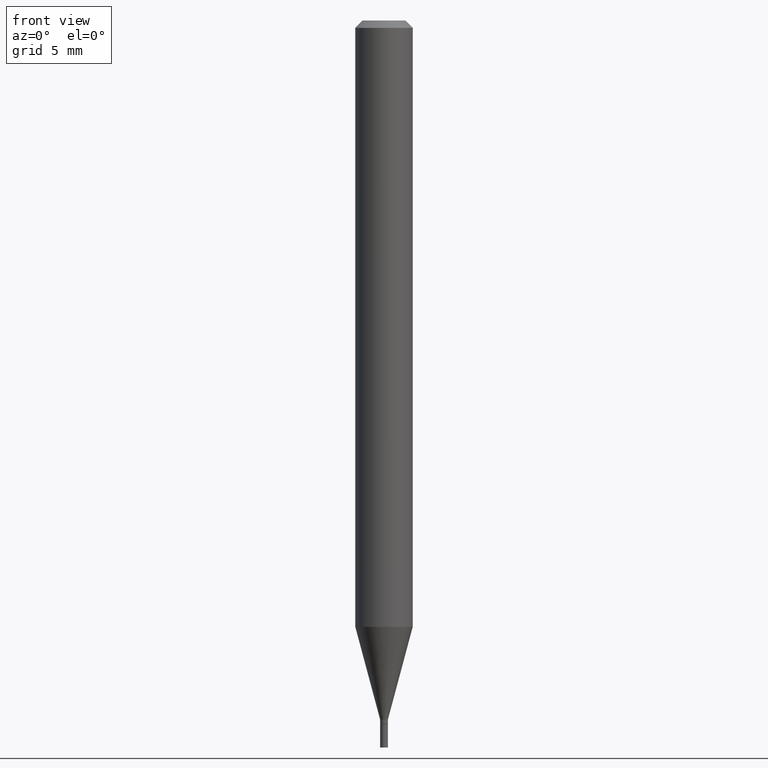
[diagram: clean part render]
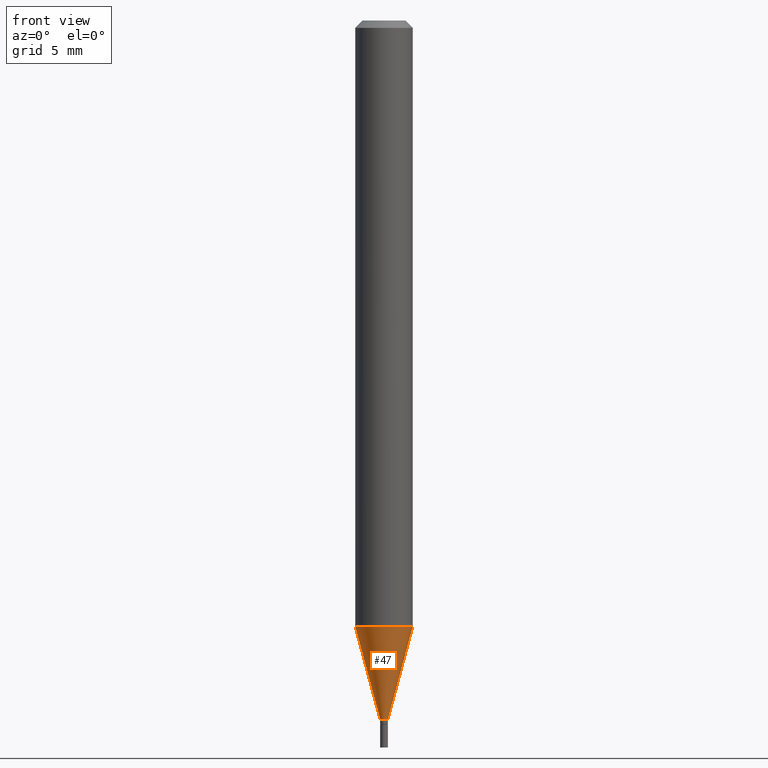
[diagram: same view with one face highlighted and labeled with its STEP entity id]
A machine part, front view. The second image highlights one B-rep face of the part: STEP entity #47.
In plain terms, the highlighted conical surface has half-angle 15 deg.
Its self-contained STEP definition (entity closure, byte-faithful):
#9 = ORIENTED_EDGE ( 'NONE', *, *, #221, .F. ) ;
#11 = CARTESIAN_POINT ( 'NONE',  ( 3.519274158981029926E-29, -5.024590794729170365E-15, -1.439100000000000046 ) ) ;
#20 = DIRECTION ( 'NONE',  ( -0.2588190451025214611, 5.211531920934550253E-15, 0.9659258262890679791 ) ) ;
#45 = EDGE_CURVE ( 'NONE', #254, #81, #372, .T. ) ;
#47 = ADVANCED_FACE ( 'NONE', ( #445 ), #231, .T. ) ;
#64 = LINE ( 'NONE', #274, #188 ) ;
#68 = AXIS2_PLACEMENT_3D ( 'NONE', #11, #253, #71 ) ;
#71 = DIRECTION ( 'NONE',  ( 1.000000000000000000, -6.982962677686276177E-15, 0.000000000000000000 ) ) ;
#81 = VERTEX_POINT ( 'NONE', #461 ) ;
#89 = EDGE_CURVE ( 'NONE', #251, #406, #64, .T. ) ;
#117 = ORIENTED_EDGE ( 'NONE', *, *, #45, .F. ) ;
#135 = DIRECTION ( 'NONE',  ( 0.2588190451025214611, 1.565188264969620982E-15, 0.9659258262890679791 ) ) ;
#170 = CIRCLE ( 'NONE', #68, 0.007849999999999917807 ) ;
#175 = CARTESIAN_POINT ( 'NONE',  ( 0.05904999999999999138, -4.769778990434194719E-15, -1.248018998652473677 ) ) ;
#188 = VECTOR ( 'NONE', #135, 39.37007874015748143 ) ;
#210 = ORIENTED_EDGE ( 'NONE', *, *, #89, .T. ) ;
#214 = CARTESIAN_POINT ( 'NONE',  ( 3.051991530731034752E-29, -4.357435044316820587E-15, -1.248018998652473677 ) ) ;
#219 = CARTESIAN_POINT ( 'NONE',  ( 3.519274158981029926E-29, -5.024590794729170365E-15, -1.439100000000000046 ) ) ;
#221 = EDGE_CURVE ( 'NONE', #81, #406, #441, .T. ) ;
#222 = DIRECTION ( 'NONE',  ( 1.000000000000000000, -6.982962677686276177E-15, 0.000000000000000000 ) ) ;
#231 = CONICAL_SURFACE ( 'NONE', #453, 0.007849999999999917807, 0.2617993877991501850 ) ;
#239 = EDGE_CURVE ( 'NONE', #254, #251, #170, .T. ) ;
#251 = VERTEX_POINT ( 'NONE', #294 ) ;
#253 = DIRECTION ( 'NONE',  ( -2.445468806185136597E-29, 3.491481338843145583E-15, 1.000000000000000000 ) ) ;
#254 = VERTEX_POINT ( 'NONE', #330 ) ;
#271 = VECTOR ( 'NONE', #20, 39.37007874015748143 ) ;
#274 = CARTESIAN_POINT ( 'NONE',  ( 0.007849999999999917807, -5.079407051749007154E-15, -1.439100000000000046 ) ) ;
#289 = DIRECTION ( 'NONE',  ( -2.445468806185136597E-29, 3.491481338843145583E-15, 1.000000000000000000 ) ) ;
#292 = DIRECTION ( 'NONE',  ( -2.445468806185136597E-29, 3.491481338843145583E-15, 1.000000000000000000 ) ) ;
#294 = CARTESIAN_POINT ( 'NONE',  ( 0.007849999999999917807, -5.079407051749007154E-15, -1.439100000000000046 ) ) ;
#320 = ORIENTED_EDGE ( 'NONE', *, *, #239, .T. ) ;
#330 = CARTESIAN_POINT ( 'NONE',  ( -0.007849999999999917807, -4.453336374411242108E-15, -1.439100000000000046 ) ) ;
#349 = AXIS2_PLACEMENT_3D ( 'NONE', #214, #289, #436 ) ;
#372 = LINE ( 'NONE', #404, #271 ) ;
#394 = EDGE_LOOP ( 'NONE', ( #117, #320, #210, #9 ) ) ;
#404 = CARTESIAN_POINT ( 'NONE',  ( -0.007849999999999917807, -4.968813189972003121E-15, -1.439100000000000046 ) ) ;
#406 = VERTEX_POINT ( 'NONE', #175 ) ;
#436 = DIRECTION ( 'NONE',  ( 1.000000000000000000, -6.982962677686273021E-15, 0.000000000000000000 ) ) ;
#441 = CIRCLE ( 'NONE', #349, 0.05904999999999999832 ) ;
#445 = FACE_OUTER_BOUND ( 'NONE', #394, .T. ) ;
#453 = AXIS2_PLACEMENT_3D ( 'NONE', #219, #292, #222 ) ;
#461 = CARTESIAN_POINT ( 'NONE',  ( -0.05904999999999999138, -3.937859558850481883E-15, -1.248018998652473677 ) ) ;